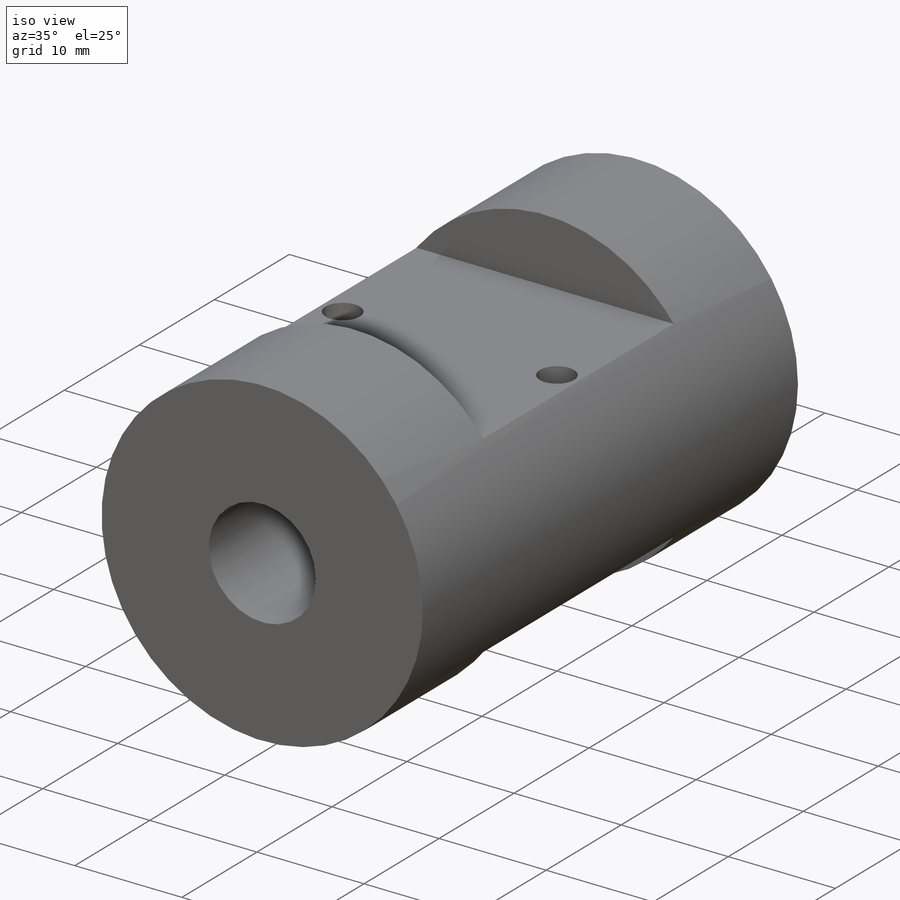
[diagram: iso view]
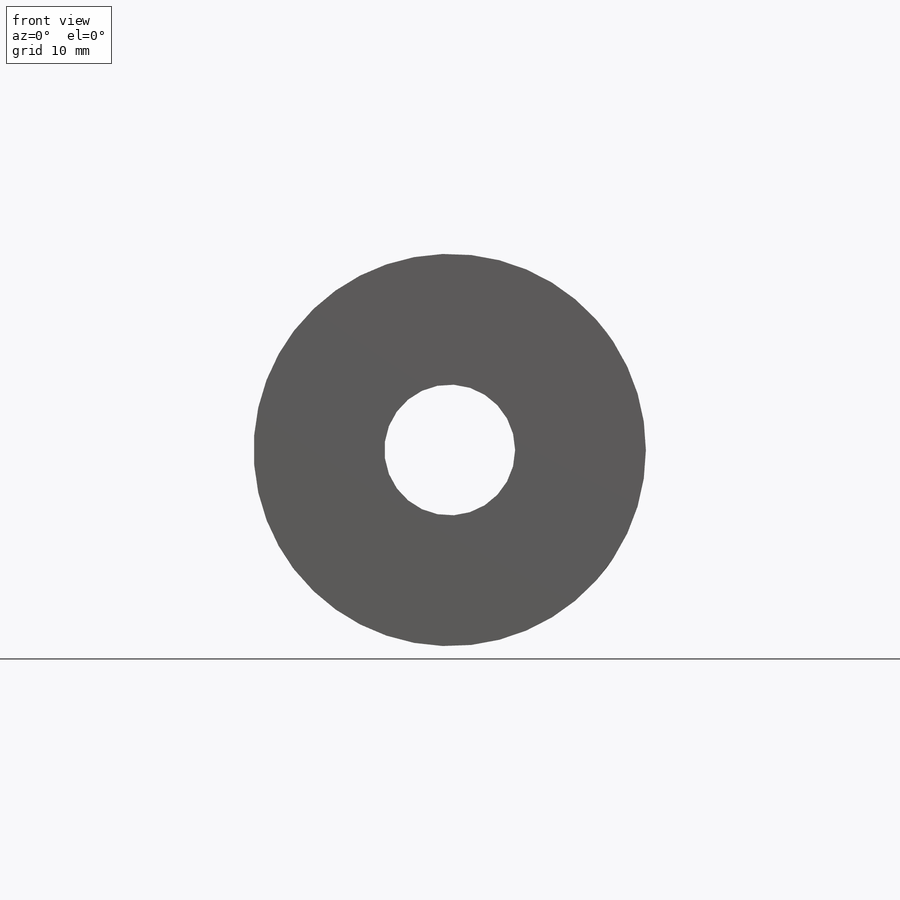
[diagram: front view]
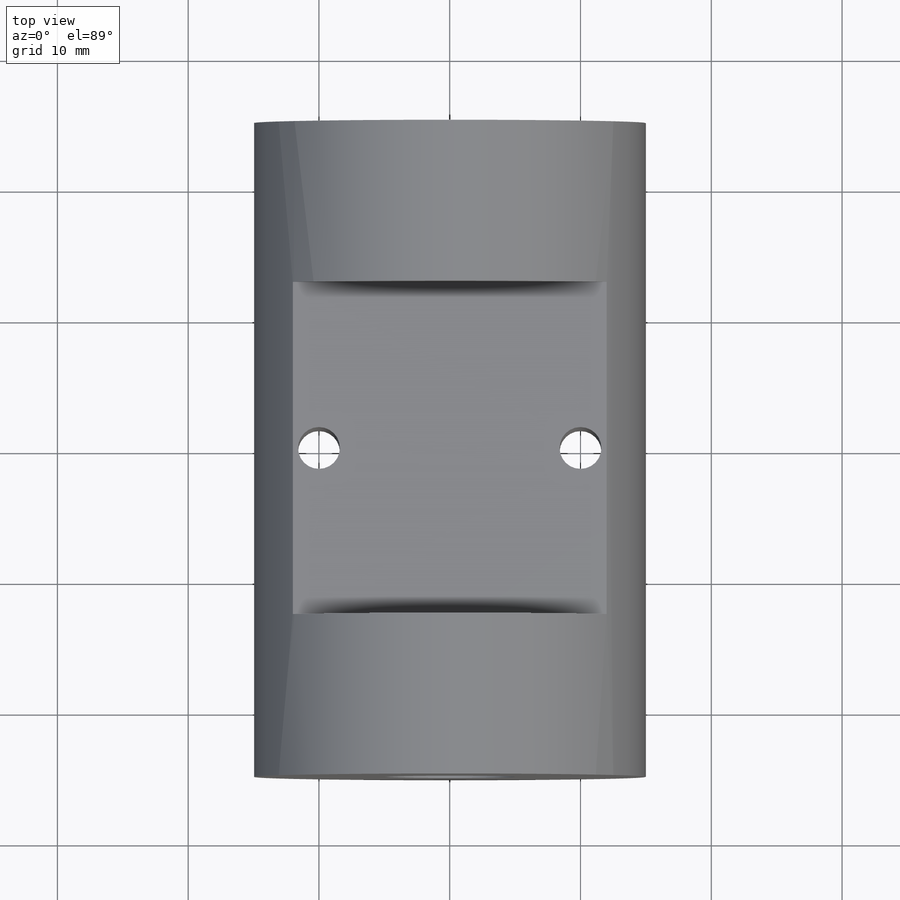
[diagram: top view]
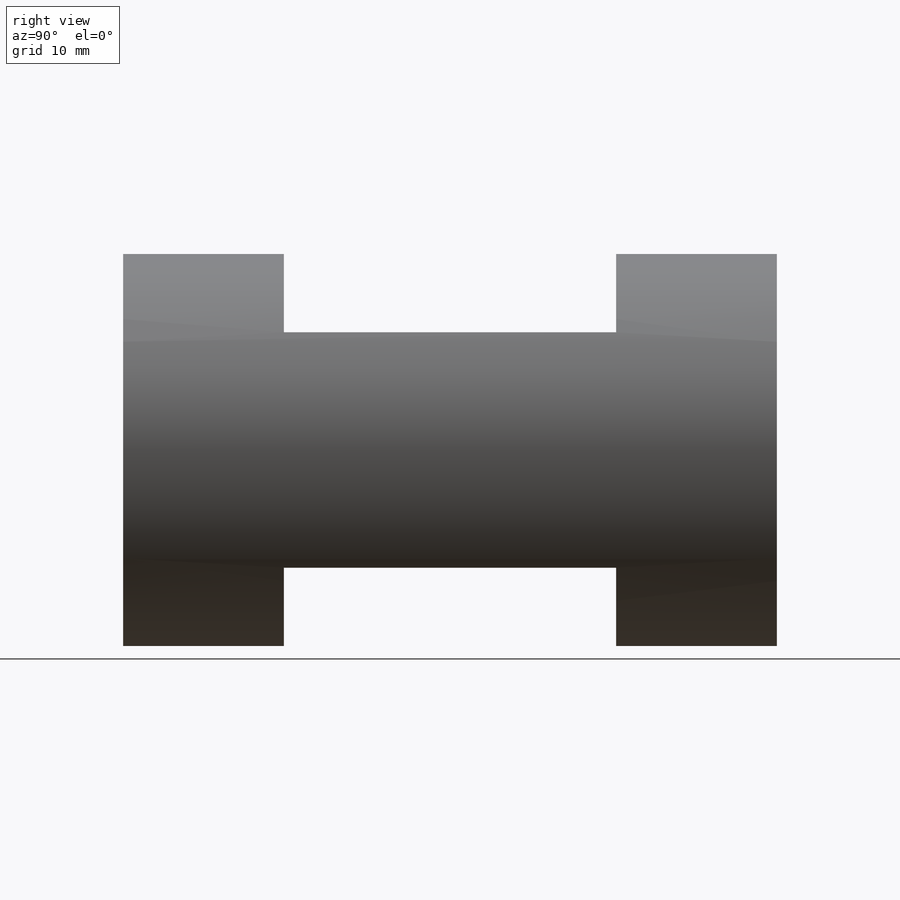
[diagram: right view]
SOLIDWORKS PART (.sldprt)
format: sldprt  version: not decoded by parser v0  size: 209,920 bytes
history: native  units: mm
features: sketch x4, cut_revolve x2, material x1, revolve x1, thread x1, cut_extrude x1 (+11 scaffold rows collapsed)
feature tree (21):
  scaffold x11  (default folders/planes/origin — collapsed)
  material  "Delrin 2700 NC010, Low Viscosity Acetal Copolymer (SS)"
  sketch  "Sketch1"  dims[D1=10.0mm D2=30.0mm D3=50.0mm]
  revolve  "Revolve1"  [1 undecoded]
  thread  "Cosmetic Thread1"  Diameter=12mm  [1 undecoded]
  sketch  "Sketch2"  dims[D1=12.0mm D2=3.0mm D3=18.0mm]
  cut_extrude  "Cut-Extrude1"  Depth=12.7mm
  sketch  "Sketch3"  dims[D1=20.0mm D2=3.2mm D3=20.0mm]
  cut_revolve  "Cut-Revolve1"  Angle=360deg
  cut_revolve  "Cut-Revolve2"  [1 undecoded]
  sketch  "Sketch3<3>"  dims[D1=360.0deg]
decode coverage: 7 of 9 modeling features carry decoded parameters
note: 3 parameter values undecoded
note: suppression state not decoded; provenance and decode notes live in map.json
